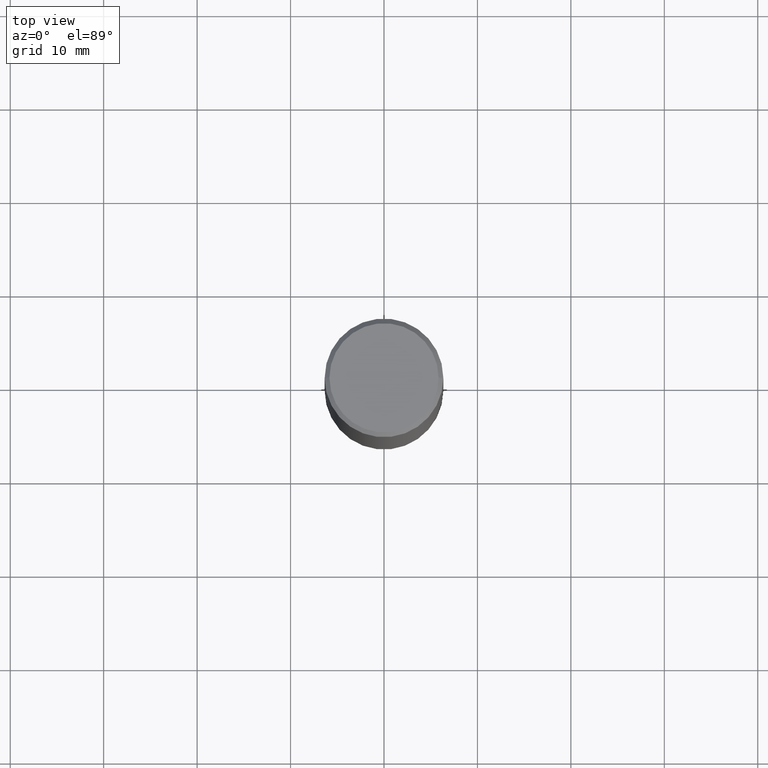
[diagram: clean part render]
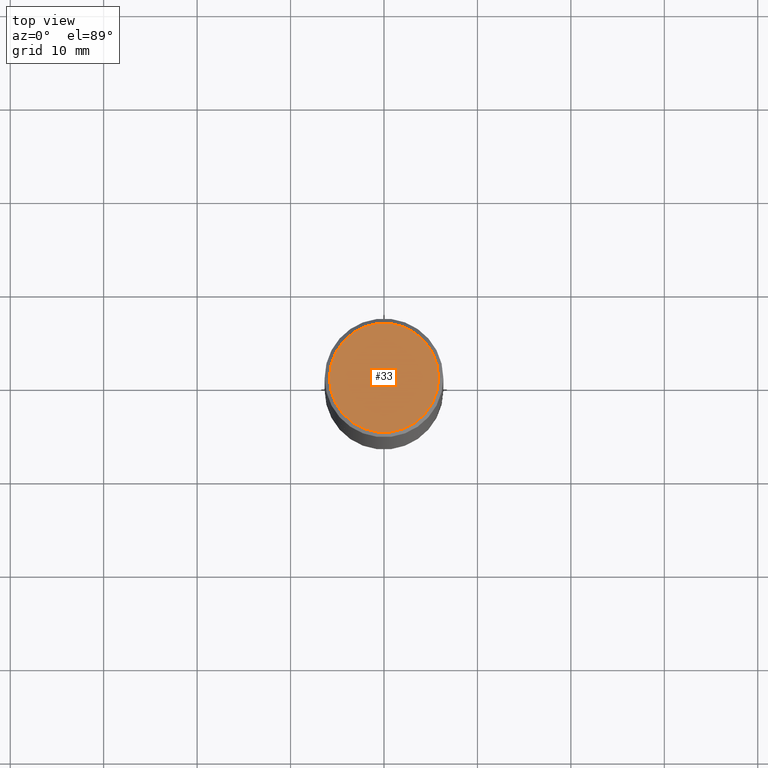
[diagram: same view with one face highlighted and labeled with its STEP entity id]
A machine part, top view. The second image highlights one B-rep face of the part: STEP entity #33.
In plain terms, the highlighted planar face has unit normal (0, -0, -1).
Its self-contained STEP definition (entity closure, byte-faithful):
#5 = DIRECTION ( 'NONE',  ( 1.000000000000000000, -6.982962677686266711E-15, 4.876225828469314487E-29 ) ) ;
#22 = CARTESIAN_POINT ( 'NONE',  ( 1.606081415867839292E-15, 0.2299999999999997324, -8.009064516888723911E-16 ) ) ;
#26 = AXIS2_PLACEMENT_3D ( 'NONE', #201, #65, #5 ) ;
#33 = ADVANCED_FACE ( 'NONE', ( #194 ), #253, .F. ) ;
#61 = DIRECTION ( 'NONE',  ( -1.000000000000000000, 6.982962677686265922E-15, -4.876176775795935793E-29 ) ) ;
#65 = DIRECTION ( 'NONE',  ( -2.445468806185136597E-29, 3.491481338843145583E-15, 1.000000000000000000 ) ) ;
#81 = DIRECTION ( 'NONE',  ( 2.438088387897960049E-29, -3.491481338843145188E-15, -1.000000000000000000 ) ) ;
#104 = AXIS2_PLACEMENT_3D ( 'NONE', #152, #292, #273 ) ;
#125 = CARTESIAN_POINT ( 'NONE',  ( 0.2299999999999997324, -1.681434332853597433E-15, 4.268512490111905999E-18 ) ) ;
#142 = AXIS2_PLACEMENT_3D ( 'NONE', #22, #81, #61 ) ;
#151 = ORIENTED_EDGE ( 'NONE', *, *, #179, .T. ) ;
#152 = CARTESIAN_POINT ( 'NONE',  ( -1.043851414335219820E-46, 1.490343170380447200E-32, 4.268512490100411279E-18 ) ) ;
#172 = EDGE_LOOP ( 'NONE', ( #337, #151 ) ) ;
#179 = EDGE_CURVE ( 'NONE', #308, #339, #185, .T. ) ;
#185 = CIRCLE ( 'NONE', #26, 0.2299999999999997324 ) ;
#194 = FACE_OUTER_BOUND ( 'NONE', #172, .T. ) ;
#201 = CARTESIAN_POINT ( 'NONE',  ( -1.043851414335219820E-46, 1.490343170380447200E-32, 4.268512490100411279E-18 ) ) ;
#209 = CARTESIAN_POINT ( 'NONE',  ( -0.2299999999999997324, 1.640996229256270744E-15, 4.268512490089056766E-18 ) ) ;
#227 = CIRCLE ( 'NONE', #104, 0.2299999999999997324 ) ;
#253 = PLANE ( 'NONE',  #142 ) ;
#273 = DIRECTION ( 'NONE',  ( 1.000000000000000000, -6.982962677686266711E-15, 4.876225828469314487E-29 ) ) ;
#280 = EDGE_CURVE ( 'NONE', #339, #308, #227, .T. ) ;
#292 = DIRECTION ( 'NONE',  ( -2.445468806185136597E-29, 3.491481338843145583E-15, 1.000000000000000000 ) ) ;
#308 = VERTEX_POINT ( 'NONE', #125 ) ;
#337 = ORIENTED_EDGE ( 'NONE', *, *, #280, .T. ) ;
#339 = VERTEX_POINT ( 'NONE', #209 ) ;